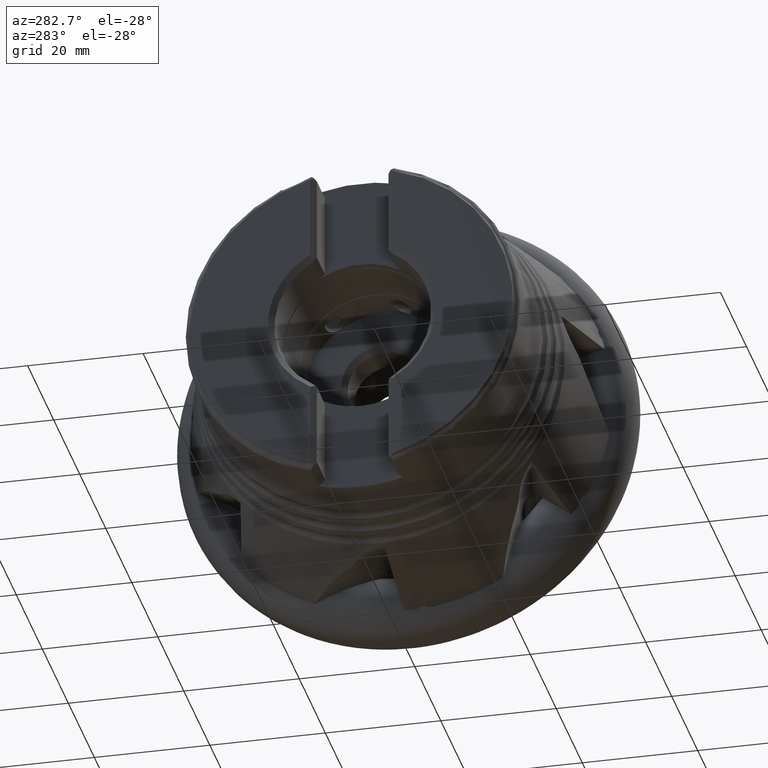
[diagram: clean part render]
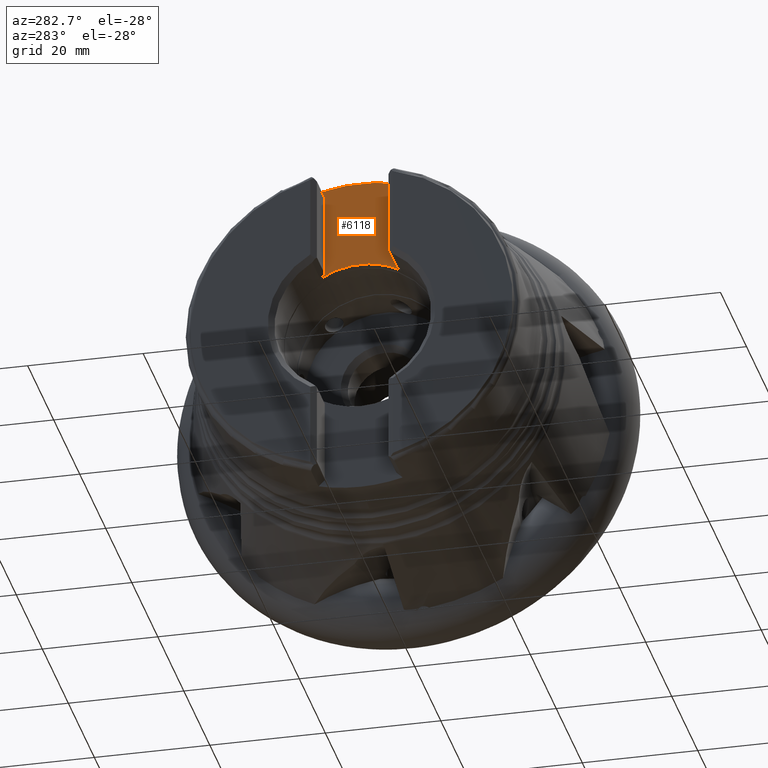
[diagram: same view with one face highlighted and labeled with its STEP entity id]
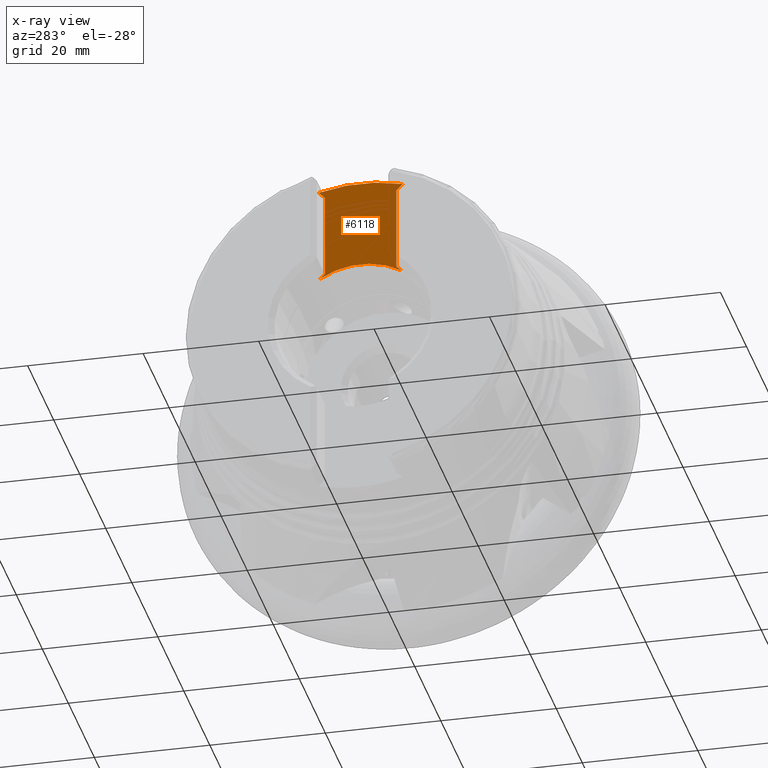
[diagram: x-ray of the same camera — body ghosted, the highlighted face saturated]
A machine part, auxiliary view. The second image highlights one B-rep face of the part: STEP entity #6118.
The next image is the same camera in x-ray: the body ghosted, the highlighted face saturated — about 0% of this face is hidden behind the body in this view.
In plain terms, the highlighted planar face has unit normal (1, 0, 0).
Its self-contained STEP definition (entity closure, byte-faithful):
#12 = VECTOR ( 'NONE', #2657, 1000.000000000000000 ) ;
#60 = ORIENTED_EDGE ( 'NONE', *, *, #2372, .F. ) ;
#83 = ORIENTED_EDGE ( 'NONE', *, *, #230, .T. ) ;
#118 = CARTESIAN_POINT ( 'NONE',  ( -41.64099999999999800, -6.200000000000003700, -30.00000000000000000 ) ) ;
#127 = VECTOR ( 'NONE', #1401, 1000.000000000000000 ) ;
#230 = EDGE_CURVE ( 'NONE', #5422, #2568, #4752, .T. ) ;
#325 = VERTEX_POINT ( 'NONE', #996 ) ;
#340 = VERTEX_POINT ( 'NONE', #2983 ) ;
#401 = EDGE_CURVE ( 'NONE', #3097, #2568, #4409, .T. ) ;
#455 = CARTESIAN_POINT ( 'NONE',  ( -41.64099999999999800, -5.351320343559647700, 13.28132034355964200 ) ) ;
#491 = CARTESIAN_POINT ( 'NONE',  ( -41.64099999999999800, -7.004073004675537300, 11.62856768244375000 ) ) ;
#638 = CARTESIAN_POINT ( 'NONE',  ( -41.64099999999999800, -6.200000000000002000, 26.98735931288070900 ) ) ;
#651 = LINE ( 'NONE', #118, #2437 ) ;
#976 = EDGE_CURVE ( 'NONE', #3176, #2417, #651, .T. ) ;
#996 = CARTESIAN_POINT ( 'NONE',  ( -41.64099999999999800, 7.004073004675509800, 11.62856768244376600 ) ) ;
#1224 = CIRCLE ( 'NONE', #5303, 28.99999999999999600 ) ;
#1377 = ORIENTED_EDGE ( 'NONE', *, *, #3808, .T. ) ;
#1384 = EDGE_LOOP ( 'NONE', ( #1377, #60, #4575, #3756, #3007, #1683, #83, #4789 ) ) ;
#1401 = DIRECTION ( 'NONE',  ( -0.0000000000000000000, -0.7071067811865473500, 0.7071067811865477900 ) ) ;
#1439 = FACE_OUTER_BOUND ( 'NONE', #1384, .T. ) ;
#1587 = LINE ( 'NONE', #455, #3224 ) ;
#1683 = ORIENTED_EDGE ( 'NONE', *, *, #6025, .T. ) ;
#1823 = AXIS2_PLACEMENT_3D ( 'NONE', #4822, #5864, #2797 ) ;
#2236 = CARTESIAN_POINT ( 'NONE',  ( -41.64099999999999800, 0.0000000000000000000, 0.0000000000000000000 ) ) ;
#2314 = PLANE ( 'NONE',  #1823 ) ;
#2372 = EDGE_CURVE ( 'NONE', #4854, #325, #5563, .T. ) ;
#2417 = VERTEX_POINT ( 'NONE', #638 ) ;
#2437 = VECTOR ( 'NONE', #3091, 1000.000000000000000 ) ;
#2568 = VERTEX_POINT ( 'NONE', #5630 ) ;
#2606 = DIRECTION ( 'NONE',  ( -1.000000000000000000, -0.0000000000000000000, -0.0000000000000000000 ) ) ;
#2657 = DIRECTION ( 'NONE',  ( -0.0000000000000000000, -0.0000000000000000000, 1.000000000000000000 ) ) ;
#2661 = AXIS2_PLACEMENT_3D ( 'NONE', #5679, #2606, #6197 ) ;
#2709 = DIRECTION ( 'NONE',  ( 0.0000000000000000000, 3.552713678800500900E-015, -1.000000000000000000 ) ) ;
#2712 = CARTESIAN_POINT ( 'NONE',  ( -41.64099999999999800, 10.51356633215388200, 31.30092564503458900 ) ) ;
#2797 = DIRECTION ( 'NONE',  ( 0.0000000000000000000, 0.0000000000000000000, -1.000000000000000000 ) ) ;
#2818 = VECTOR ( 'NONE', #5480, 1000.000000000000100 ) ;
#2937 = EDGE_CURVE ( 'NONE', #2417, #340, #3402, .T. ) ;
#2983 = CARTESIAN_POINT ( 'NONE',  ( -41.64099999999999800, -7.283181580761731900, 28.07054089364244800 ) ) ;
#3007 = ORIENTED_EDGE ( 'NONE', *, *, #2937, .T. ) ;
#3091 = DIRECTION ( 'NONE',  ( -0.0000000000000000000, -0.0000000000000000000, 1.000000000000000000 ) ) ;
#3097 = VERTEX_POINT ( 'NONE', #3140 ) ;
#3140 = CARTESIAN_POINT ( 'NONE',  ( -41.64099999999999800, 6.199999999999994000, 12.43264068711928500 ) ) ;
#3176 = VERTEX_POINT ( 'NONE', #5800 ) ;
#3189 = CARTESIAN_POINT ( 'NONE',  ( -41.64099999999999800, 7.283181580761740800, 28.07054089364243800 ) ) ;
#3224 = VECTOR ( 'NONE', #3445, 1000.000000000000100 ) ;
#3353 = CARTESIAN_POINT ( 'NONE',  ( -41.64099999999999800, -10.51356633215387700, 31.30092564503458900 ) ) ;
#3402 = LINE ( 'NONE', #3353, #127 ) ;
#3445 = DIRECTION ( 'NONE',  ( -0.0000000000000000000, 0.7071067811865470200, 0.7071067811865479100 ) ) ;
#3637 = LINE ( 'NONE', #3826, #3950 ) ;
#3701 = CARTESIAN_POINT ( 'NONE',  ( -41.64099999999999800, 6.199999999999994000, -30.00000000000000000 ) ) ;
#3756 = ORIENTED_EDGE ( 'NONE', *, *, #976, .T. ) ;
#3808 = EDGE_CURVE ( 'NONE', #3097, #325, #3637, .T. ) ;
#3826 = CARTESIAN_POINT ( 'NONE',  ( -41.64099999999999800, 5.351320343559640600, 13.28132034355964000 ) ) ;
#3950 = VECTOR ( 'NONE', #5376, 999.9999999999998900 ) ;
#4409 = LINE ( 'NONE', #3701, #12 ) ;
#4575 = ORIENTED_EDGE ( 'NONE', *, *, #5072, .T. ) ;
#4752 = LINE ( 'NONE', #2712, #2818 ) ;
#4789 = ORIENTED_EDGE ( 'NONE', *, *, #401, .F. ) ;
#4822 = CARTESIAN_POINT ( 'NONE',  ( -41.64099999999999800, 6.199999999999994000, -30.00000000000000000 ) ) ;
#4854 = VERTEX_POINT ( 'NONE', #491 ) ;
#5072 = EDGE_CURVE ( 'NONE', #4854, #3176, #1587, .T. ) ;
#5303 = AXIS2_PLACEMENT_3D ( 'NONE', #2236, #5782, #2709 ) ;
#5376 = DIRECTION ( 'NONE',  ( 0.0000000000000000000, 0.7071067811865469100, -0.7071067811865482400 ) ) ;
#5422 = VERTEX_POINT ( 'NONE', #3189 ) ;
#5480 = DIRECTION ( 'NONE',  ( 0.0000000000000000000, -0.7071067811865474600, -0.7071067811865474600 ) ) ;
#5563 = CIRCLE ( 'NONE', #2661, 13.57499999999999400 ) ;
#5630 = CARTESIAN_POINT ( 'NONE',  ( -41.64099999999999800, 6.199999999999995700, 26.98735931288070200 ) ) ;
#5679 = CARTESIAN_POINT ( 'NONE',  ( -41.64099999999999800, 0.0000000000000000000, 0.0000000000000000000 ) ) ;
#5782 = DIRECTION ( 'NONE',  ( -1.000000000000000000, -0.0000000000000000000, -0.0000000000000000000 ) ) ;
#5800 = CARTESIAN_POINT ( 'NONE',  ( -41.64099999999999800, -6.200000000000008200, 12.43264068711928000 ) ) ;
#5864 = DIRECTION ( 'NONE',  ( 1.000000000000000000, 0.0000000000000000000, 0.0000000000000000000 ) ) ;
#6025 = EDGE_CURVE ( 'NONE', #340, #5422, #1224, .T. ) ;
#6118 = ADVANCED_FACE ( 'NONE', ( #1439 ), #2314, .F. ) ;
#6197 = DIRECTION ( 'NONE',  ( 0.0000000000000000000, 0.0000000000000000000, -1.000000000000000000 ) ) ;